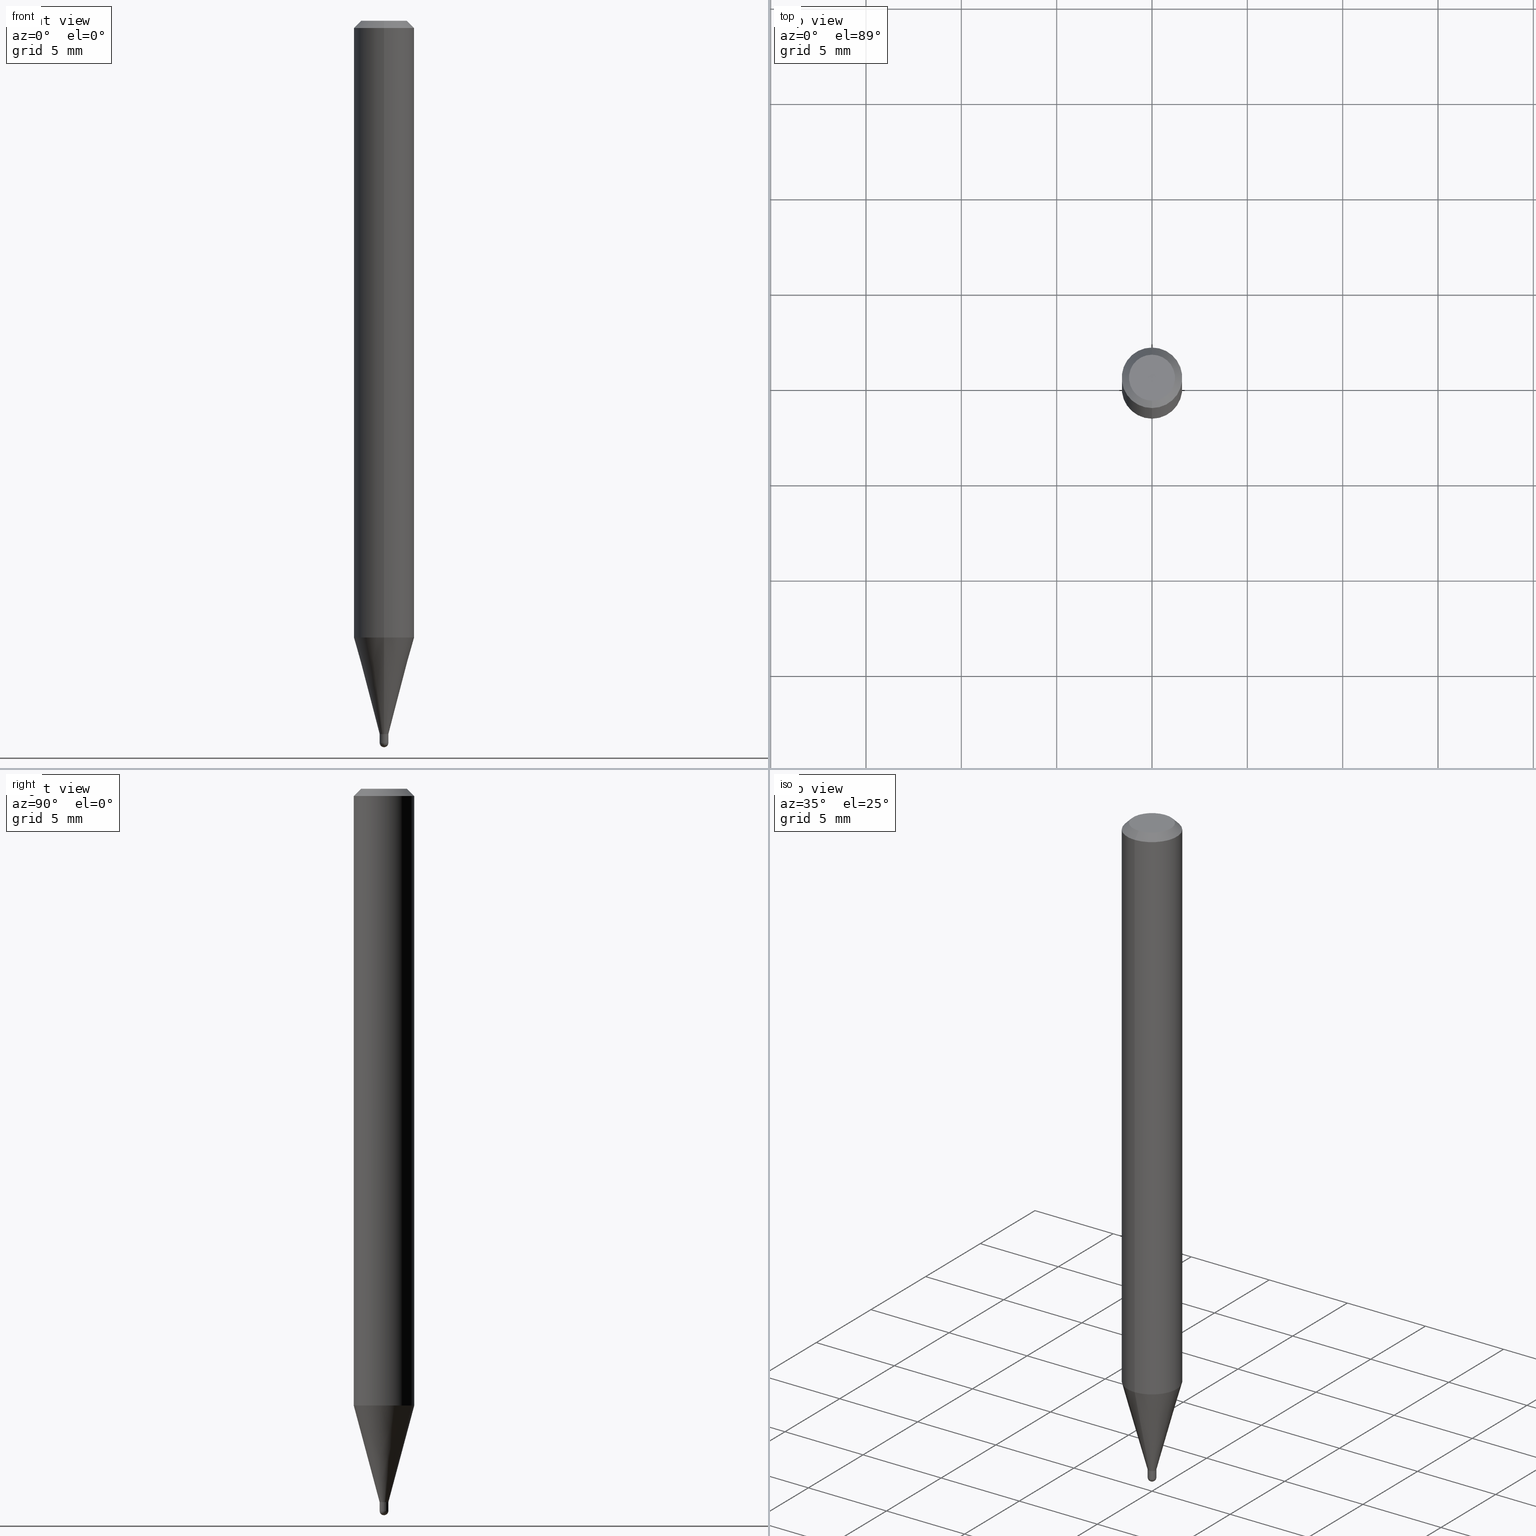
[diagram: canonical four-view strip — front | top / right | iso, engineering-drawing reading convention]
A machine part, canonical four-view strip (front | top / right | iso — engineering-drawing reading convention). The complete STEP part file that produces these views, byte-faithful:
ISO-10303-21;
HEADER;
FILE_DESCRIPTION (( 'STEP AP203' ),
    '1' );
FILE_NAME ('04330.STEP',
    '2024-03-08T18:40:05',
    ( '' ),
    ( '' ),
    'SwSTEP 2.0',
    'SolidWorks 2023',
    '' );
FILE_SCHEMA (( 'CONFIG_CONTROL_DESIGN' ));
ENDSEC;

DATA;
#1 = DATE_AND_TIME ( #467, #373 ) ;
#2 = DIRECTION ( 'NONE',  ( -2.445461654615416664E-29, 3.491491580298026496E-15, 1.000000000000000000 ) ) ;
#3 = ORIENTED_EDGE ( 'NONE', *, *, #433, .F. ) ;
#4 = VECTOR ( 'NONE', #85, 39.37007874015748143 ) ;
#5 = CARTESIAN_POINT ( 'NONE',  ( 3.600942286421201241E-29, -5.141221351988844661E-15, -1.472500000000000142 ) ) ;
#6 = AXIS2_PLACEMENT_3D ( 'NONE', #93, #407, #253 ) ;
#7 = ADVANCED_FACE ( 'NONE', ( #100 ), #325, .T. ) ;
#8 = DIRECTION ( 'NONE',  ( -6.982962677686265922E-15, -1.000000000000000000, 0.000000000000000000 ) ) ;
#9 = CARTESIAN_POINT ( 'NONE',  ( 3.668192481923141303E-31, -5.237237370447062670E-17, -0.01500000000000006710 ) ) ;
#10 = DIRECTION ( 'NONE',  ( -2.445468806185136597E-29, 3.491481338843145583E-15, 1.000000000000000000 ) ) ;
#11 = ORIENTED_EDGE ( 'NONE', *, *, #376, .F. ) ;
#12 = DIRECTION ( 'NONE',  ( 1.000000000000000000, -6.982962677686225690E-15, 0.000000000000000000 ) ) ;
#13 = AXIS2_PLACEMENT_3D ( 'NONE', #123, #79, #274 ) ;
#14 = PRODUCT_DEFINITION_FORMATION_WITH_SPECIFIED_SOURCE ( 'ANY', '', #83, .NOT_KNOWN. ) ;
#15 = DIRECTION ( 'NONE',  ( -2.445461654615416664E-29, 3.491491580298026496E-15, 1.000000000000000000 ) ) ;
#16 = CC_DESIGN_PERSON_AND_ORGANIZATION_ASSIGNMENT ( #68, #230, ( #83 ) ) ;
#17 = ADVANCED_FACE ( 'NONE', ( #132 ), #205, .T. ) ;
#18 = CIRCLE ( 'NONE', #309, 0.009000000000000047892 ) ;
#19 = CARTESIAN_POINT ( 'NONE',  ( 6.039613253964452424E-17, 0.008499999999994855421, -1.473000000000000309 ) ) ;
#20 = ORIENTED_EDGE ( 'NONE', *, *, #186, .T. ) ;
#21 = DIRECTION ( 'NONE',  ( -6.982962677686265922E-15, -1.000000000000000000, 3.483106191921935554E-15 ) ) ;
#22 = ORIENTED_EDGE ( 'NONE', *, *, #332, .F. ) ;
#23 = CARTESIAN_POINT ( 'NONE',  ( 3.668192481923141303E-31, -5.237237370447062670E-17, -0.01500000000000006710 ) ) ;
#24 = EDGE_CURVE ( 'NONE', #188, #249, #289, .T. ) ;
#25 = APPLICATION_CONTEXT ( 'configuration controlled 3d designs of mechanical parts and assemblies' ) ;
#26 = ORIENTED_EDGE ( 'NONE', *, *, #147, .T. ) ;
#27 = CIRCLE ( 'NONE', #425, 0.06250000000000000000 ) ;
#28 =( GEOMETRIC_REPRESENTATION_CONTEXT ( 3 ) GLOBAL_UNCERTAINTY_ASSIGNED_CONTEXT ( ( #197 ) ) GLOBAL_UNIT_ASSIGNED_CONTEXT ( ( #383, #29, #386 ) ) REPRESENTATION_CONTEXT ( 'NONE', 'WORKASPACE' ) );
#29 =( NAMED_UNIT ( * ) PLANE_ANGLE_UNIT ( ) SI_UNIT ( $, .RADIAN. ) );
#30 = ORIENTED_EDGE ( 'NONE', *, *, #285, .T. ) ;
#31 = ORIENTED_EDGE ( 'NONE', *, *, #474, .F. ) ;
#32 = EDGE_CURVE ( 'NONE', #419, #506, #204, .T. ) ;
#33 = CIRCLE ( 'NONE', #398, 0.06250000000000000000 ) ;
#34 = PERSON_AND_ORGANIZATION ( #313, #317 ) ;
#35 = CYLINDRICAL_SURFACE ( 'NONE', #415, 0.008999999999999999320 ) ;
#36 = CARTESIAN_POINT ( 'NONE',  ( 0.000000000000000000, 0.000000000000000000, 0.000000000000000000 ) ) ;
#37 = DIRECTION ( 'NONE',  ( -6.982962677686265133E-15, -1.000000000000000000, 3.491491580298026496E-15 ) ) ;
#38 = FACE_OUTER_BOUND ( 'NONE', #465, .T. ) ;
#39 = ORIENTED_EDGE ( 'NONE', *, *, #149, .F. ) ;
#40 = DIRECTION ( 'NONE',  ( -2.445468806185136597E-29, 3.491481338843145583E-15, 1.000000000000000000 ) ) ;
#41 = CC_DESIGN_DATE_AND_TIME_ASSIGNMENT ( #263, #426, ( #216 ) ) ;
#42 = CARTESIAN_POINT ( 'NONE',  ( 6.394884621844563230E-17, 0.008999999999994817701, -1.491000000000000103 ) ) ;
#43 = CARTESIAN_POINT ( 'NONE',  ( -0.008999999999999999320, -5.110426497947132608E-15, -1.473000000000000087 ) ) ;
#44 = DIRECTION ( 'NONE',  ( -2.445468806185136597E-29, 3.491481338843145583E-15, 1.000000000000000000 ) ) ;
#45 = VECTOR ( 'NONE', #235, 39.37007874015748143 ) ;
#46 = CONICAL_SURFACE ( 'NONE', #451, 0.06250000000000000000, 0.7853981633974483900 ) ;
#47 = CARTESIAN_POINT ( 'NONE',  ( 0.000000000000000000, 0.000000000000000000, 0.000000000000000000 ) ) ;
#48 = CARTESIAN_POINT ( 'NONE',  ( -6.284666409914009652E-17, -0.009000000000005229511, -1.491000000000000103 ) ) ;
#49 = DIRECTION ( 'NONE',  ( -6.982962677686265922E-15, -1.000000000000000000, 3.483106191921935554E-15 ) ) ;
#50 = ADVANCED_FACE ( 'NONE', ( #372 ), #351, .T. ) ;
#51 = VERTEX_POINT ( 'NONE', #177 ) ;
#52 = ADVANCED_FACE ( 'NONE', ( #488 ), #35, .T. ) ;
#53 = SPHERICAL_SURFACE ( 'NONE', #246, 0.009000000000000047892 ) ;
#54 = EDGE_LOOP ( 'NONE', ( #347, #26, #22, #268 ) ) ;
#55 = DIRECTION ( 'NONE',  ( -6.982962677686265133E-15, -1.000000000000000000, 0.000000000000000000 ) ) ;
#56 = CONICAL_SURFACE ( 'NONE', #295, 0.009000000000000197078, 0.2617993877991573459 ) ;
#57 = CC_DESIGN_APPROVAL ( #410, ( #262 ) ) ;
#58 = CARTESIAN_POINT ( 'NONE',  ( 6.394884621844643349E-17, 0.008999999999995053623, -1.473000000000000087 ) ) ;
#59 = VERTEX_POINT ( 'NONE', #277 ) ;
#60 = DIRECTION ( 'NONE',  ( 1.000000000000000000, -6.982962677686225690E-15, 0.000000000000000000 ) ) ;
#61 = DIRECTION ( 'NONE',  ( -6.982962677686265922E-15, -1.000000000000000000, 0.000000000000000000 ) ) ;
#62 = ORIENTED_EDGE ( 'NONE', *, *, #186, .F. ) ;
#63 = ORIENTED_EDGE ( 'NONE', *, *, #98, .T. ) ;
#64 = CIRCLE ( 'NONE', #89, 0.009000000000000197078 ) ;
#65 = CIRCLE ( 'NONE', #361, 0.06250000000000000000 ) ;
#66 = PERSON_AND_ORGANIZATION ( #313, #317 ) ;
#67 = VERTEX_POINT ( 'NONE', #199 ) ;
#68 = PERSON_AND_ORGANIZATION ( #313, #317 ) ;
#69 = EDGE_LOOP ( 'NONE', ( #463, #378, #134, #292 ) ) ;
#70 = ADVANCED_FACE ( 'NONE', ( #348 ), #56, .T. ) ;
#71 = EDGE_LOOP ( 'NONE', ( #444, #62 ) ) ;
#72 = VECTOR ( 'NONE', #283, 39.37007874015748143 ) ;
#73 = DATE_AND_TIME ( #269, #326 ) ;
#74 = CARTESIAN_POINT ( 'NONE',  ( 3.113892605098765118E-29, -4.445839415283910039E-15, -1.273335281795072271 ) ) ;
#75 = DIRECTION ( 'NONE',  ( -2.445461654615416384E-29, 3.491491580298026496E-15, 1.000000000000000000 ) ) ;
#76 = ORIENTED_EDGE ( 'NONE', *, *, #91, .F. ) ;
#77 = DIRECTION ( 'NONE',  ( -2.445468806185136597E-29, 3.491481338843145583E-15, 1.000000000000000000 ) ) ;
#78 = CIRCLE ( 'NONE', #342, 0.04749999999999999362 ) ;
#79 = DIRECTION ( 'NONE',  ( -2.445461654615416664E-29, 3.491491580298026496E-15, 1.000000000000000000 ) ) ;
#80 = APPROVAL_PERSON_ORGANIZATION ( #34, #359, #193 ) ;
#81 = EDGE_CURVE ( 'NONE', #303, #419, #94, .T. ) ;
#82 = DIRECTION ( 'NONE',  ( 6.982962677686265922E-15, 1.000000000000000000, -3.483106191921935554E-15 ) ) ;
#83 = PRODUCT ( '04330', '04330', '', ( #184 ) ) ;
#84 = VERTEX_POINT ( 'NONE', #420 ) ;
#85 = DIRECTION ( 'NONE',  ( 4.937700262164548042E-15, 0.7071067811865451302, -0.7071067811865499042 ) ) ;
#86 = CARTESIAN_POINT ( 'NONE',  ( 6.394884621841040473E-17, 0.009000000000000197078, -3.142342422268292822E-17 ) ) ;
#87 = FACE_OUTER_BOUND ( 'NONE', #127, .T. ) ;
#88 = AXIS2_PLACEMENT_3D ( 'NONE', #208, #408, #411 ) ;
#89 = AXIS2_PLACEMENT_3D ( 'NONE', #5, #403, #482 ) ;
#90 = CARTESIAN_POINT ( 'NONE',  ( 3.602165017248509387E-29, -5.142967097778992648E-15, -1.473000000000000087 ) ) ;
#91 = EDGE_CURVE ( 'NONE', #84, #249, #391, .T. ) ;
#92 = DIRECTION ( 'NONE',  ( 2.445461654615416664E-29, -3.491491580298026496E-15, -1.000000000000000000 ) ) ;
#93 = CARTESIAN_POINT ( 'NONE',  ( 3.316907271900976096E-16, 0.04749999999999999362, -1.985957238558009581E-16 ) ) ;
#94 = CIRCLE ( 'NONE', #196, 0.009000000000000197078 ) ;
#95 = EDGE_LOOP ( 'NONE', ( #422, #20, #315, #138 ) ) ;
#96 = DIRECTION ( 'NONE',  ( -2.445468806185136597E-29, 3.491481338843145583E-15, 1.000000000000000000 ) ) ;
#97 = CC_DESIGN_APPROVAL ( #430, ( #216 ) ) ;
#98 = EDGE_CURVE ( 'NONE', #103, #324, #266, .T. ) ;
#99 = CARTESIAN_POINT ( 'NONE',  ( 4.440892098500935790E-16, 0.06249999999999554523, -1.273335281795072493 ) ) ;
#100 = FACE_OUTER_BOUND ( 'NONE', #402, .T. ) ;
#101 = EDGE_CURVE ( 'NONE', #142, #324, #469, .T. ) ;
#102 = PERSON_AND_ORGANIZATION_ROLE ( 'design_supplier' ) ;
#103 = VERTEX_POINT ( 'NONE', #507 ) ;
#104 = CARTESIAN_POINT ( 'NONE',  ( 3.602175551510706507E-29, -5.142952012115953829E-15, -1.473000000000000087 ) ) ;
#105 = CALENDAR_DATE ( 2024, 8, 3 ) ;
#106 = EDGE_LOOP ( 'NONE', ( #328, #341, #428, #298 ) ) ;
#107 = DIRECTION ( 'NONE',  ( -2.445461654615416664E-29, 3.491491580298026496E-15, 1.000000000000000000 ) ) ;
#108 = VECTOR ( 'NONE', #296, 39.37007874015748143 ) ;
#109 = VERTEX_POINT ( 'NONE', #48 ) ;
#110 = APPLICATION_PROTOCOL_DEFINITION ( 'international standard', 'config_control_design', 1994, #505 ) ;
#111 = DIRECTION ( 'NONE',  ( -2.445461654615416664E-29, 3.491491580298026496E-15, 1.000000000000000000 ) ) ;
#112 = EDGE_LOOP ( 'NONE', ( #468, #294, #381, #157 ) ) ;
#113 = CARTESIAN_POINT ( 'NONE',  ( 3.645424340361776999E-29, -5.206900858334362902E-15, -1.491000000000000103 ) ) ;
#114 = AXIS2_PLACEMENT_3D ( 'NONE', #160, #15, #168 ) ;
#115 = CARTESIAN_POINT ( 'NONE',  ( 0.000000000000000000, 0.000000000000000000, 0.000000000000000000 ) ) ;
#116 = VERTEX_POINT ( 'NONE', #331 ) ;
#117 = COORDINATED_UNIVERSAL_TIME_OFFSET ( 5, 0, .BEHIND. ) ;
#118 = CARTESIAN_POINT ( 'NONE',  ( -4.364351673553912750E-16, -0.06250000000000005551, -0.01499999999999984852 ) ) ;
#119 = SHAPE_DEFINITION_REPRESENTATION ( #170, #211 ) ;
#120 = EDGE_CURVE ( 'NONE', #109, #116, #461, .T. ) ;
#121 = CARTESIAN_POINT ( 'NONE',  ( -6.284666409917776463E-17, -0.009000000000000197078, 3.142342422268292822E-17 ) ) ;
#122 = CLOSED_SHELL ( 'NONE', ( #173, #395, #260, #389, #52 ) ) ;
#123 = CARTESIAN_POINT ( 'NONE',  ( 3.602165017248509947E-29, -5.142967097778994226E-15, -1.473000000000000309 ) ) ;
#124 = CIRCLE ( 'NONE', #114, 0.008499999999999998876 ) ;
#125 = ORIENTED_EDGE ( 'NONE', *, *, #503, .F. ) ;
#126 = DIRECTION ( 'NONE',  ( 2.445461654615416664E-29, -3.491491580298026496E-15, -1.000000000000000000 ) ) ;
#127 = EDGE_LOOP ( 'NONE', ( #375, #129, #459, #261 ) ) ;
#128 = FACE_OUTER_BOUND ( 'NONE', #69, .T. ) ;
#129 = ORIENTED_EDGE ( 'NONE', *, *, #376, .T. ) ;
#130 = LINE ( 'NONE', #176, #297 ) ;
#131 = AXIS2_PLACEMENT_3D ( 'NONE', #401, #10, #278 ) ;
#132 = FACE_OUTER_BOUND ( 'NONE', #95, .T. ) ;
#133 = CIRCLE ( 'NONE', #228, 0.008999999999999999320 ) ;
#134 = ORIENTED_EDGE ( 'NONE', *, *, #345, .T. ) ;
#135 = CARTESIAN_POINT ( 'NONE',  ( 2.540190280342702096E-16, 0.008999999999995053623, -1.473000000000000087 ) ) ;
#136 = EDGE_LOOP ( 'NONE', ( #11, #150, #63, #125 ) ) ;
#137 = CARTESIAN_POINT ( 'NONE',  ( 3.645424340361776999E-29, -5.206900858334362902E-15, -1.491000000000000103 ) ) ;
#138 = ORIENTED_EDGE ( 'NONE', *, *, #291, .F. ) ;
#139 = DIRECTION ( 'NONE',  ( -2.445461654615416664E-29, 3.491491580298026496E-15, 1.000000000000000000 ) ) ;
#140 = CARTESIAN_POINT ( 'NONE',  ( 3.646193990022038953E-29, -5.205798676215130324E-15, -1.491000000000000103 ) ) ;
#141 = CIRCLE ( 'NONE', #182, 0.008999999999999999320 ) ;
#142 = VERTEX_POINT ( 'NONE', #362 ) ;
#143 = ORIENTED_EDGE ( 'NONE', *, *, #120, .T. ) ;
#144 = DATE_AND_TIME ( #393, #484 ) ;
#145 = ORIENTED_EDGE ( 'NONE', *, *, #218, .T. ) ;
#146 = DIRECTION ( 'NONE',  ( -4.851104656540964275E-15, -0.7071067811865500152, -0.7071067811865450192 ) ) ;
#147 = EDGE_CURVE ( 'NONE', #284, #109, #510, .T. ) ;
#148 = APPROVAL_STATUS ( 'not_yet_approved' ) ;
#149 = EDGE_CURVE ( 'NONE', #51, #506, #158, .T. ) ;
#150 = ORIENTED_EDGE ( 'NONE', *, *, #156, .T. ) ;
#151 = AXIS2_PLACEMENT_3D ( 'NONE', #280, #237, #165 ) ;
#152 = AXIS2_PLACEMENT_3D ( 'NONE', #137, #174, #495 ) ;
#153 = CC_DESIGN_PERSON_AND_ORGANIZATION_ASSIGNMENT ( #66, #501, ( #262 ) ) ;
#154 = COORDINATED_UNIVERSAL_TIME_OFFSET ( 5, 0, .BEHIND. ) ;
#155 = APPROVAL_DATE_TIME ( #1, #359 ) ;
#156 = EDGE_CURVE ( 'NONE', #496, #103, #367, .T. ) ;
#157 = ORIENTED_EDGE ( 'NONE', *, *, #285, .F. ) ;
#158 = CIRCLE ( 'NONE', #441, 0.009000000000000197078 ) ;
#159 = CIRCLE ( 'NONE', #287, 0.009000000000000197078 ) ;
#160 = CARTESIAN_POINT ( 'NONE',  ( 3.602165017248509947E-29, -5.142967097778994226E-15, -1.473000000000000309 ) ) ;
#161 = EDGE_CURVE ( 'NONE', #116, #84, #232, .T. ) ;
#162 = DIRECTION ( 'NONE',  ( -6.982962677686266711E-15, -1.000000000000000000, 3.491491580298026890E-15 ) ) ;
#163 = CARTESIAN_POINT ( 'NONE',  ( 3.667048734787312244E-29, -5.238875281443567833E-15, -1.500000000000000222 ) ) ;
#164 = AXIS2_PLACEMENT_3D ( 'NONE', #104, #96, #60 ) ;
#165 = DIRECTION ( 'NONE',  ( -6.982962677686265922E-15, -1.000000000000000000, 3.491491580298026496E-15 ) ) ;
#166 = DIRECTION ( 'NONE',  ( -6.982962677686265133E-15, -1.000000000000000000, 0.000000000000000000 ) ) ;
#167 = DESIGN_CONTEXT ( 'detailed design', #505, 'design' ) ;
#168 = DIRECTION ( 'NONE',  ( -6.982962677686265922E-15, -1.000000000000000000, 0.000000000000000000 ) ) ;
#169 = CARTESIAN_POINT ( 'NONE',  ( 3.602165017248509387E-29, -5.142967097778992648E-15, -1.473000000000000087 ) ) ;
#170 = PRODUCT_DEFINITION_SHAPE ( 'NONE', 'NONE',  #262 ) ;
#171 = ADVANCED_FACE ( 'NONE', ( #234 ), #476, .F. ) ;
#172 = CYLINDRICAL_SURFACE ( 'NONE', #333, 0.009000000000000197078 ) ;
#173 = ADVANCED_FACE ( 'NONE', ( #446 ), #329, .T. ) ;
#174 = DIRECTION ( 'NONE',  ( 1.000000000000000000, -6.982962677686265922E-15, 4.883557194083112340E-29 ) ) ;
#175 = AXIS2_PLACEMENT_3D ( 'NONE', #47, #210, #370 ) ;
#176 = CARTESIAN_POINT ( 'NONE',  ( -6.284666409914174820E-17, -0.009000000000005338799, -1.473000000000000087 ) ) ;
#177 = CARTESIAN_POINT ( 'NONE',  ( -6.284666409914197007E-17, -0.009000000000005366554, -1.472500000000000142 ) ) ;
#178 = ORIENTED_EDGE ( 'NONE', *, *, #24, .T. ) ;
#179 = LINE ( 'NONE', #58, #108 ) ;
#180 = ORIENTED_EDGE ( 'NONE', *, *, #466, .T. ) ;
#181 = DIRECTION ( 'NONE',  ( -2.445461654615416664E-29, 3.491491580298026496E-15, 1.000000000000000000 ) ) ;
#182 = AXIS2_PLACEMENT_3D ( 'NONE', #358, #44, #12 ) ;
#183 = CARTESIAN_POINT ( 'NONE',  ( 3.602165017248509947E-29, -5.142967097778994226E-15, -1.473000000000000309 ) ) ;
#184 = MECHANICAL_CONTEXT ( 'NONE', #25, 'mechanical' ) ;
#185 = EDGE_LOOP ( 'NONE', ( #281, #220, #143, #336, #338 ) ) ;
#186 = EDGE_CURVE ( 'NONE', #498, #67, #470, .T. ) ;
#187 = ADVANCED_FACE ( 'NONE', ( #436 ), #242, .T. ) ;
#188 = VERTEX_POINT ( 'NONE', #206 ) ;
#189 = APPROVAL_STATUS ( 'not_yet_approved' ) ;
#190 = AXIS2_PLACEMENT_3D ( 'NONE', #113, #318, #8 ) ;
#191 = AXIS2_PLACEMENT_3D ( 'NONE', #36, #231, #306 ) ;
#192 = AXIS2_PLACEMENT_3D ( 'NONE', #140, #250, #337 ) ;
#193 = APPROVAL_ROLE ( '' ) ;
#194 = ORIENTED_EDGE ( 'NONE', *, *, #101, .F. ) ;
#195 = LINE ( 'NONE', #365, #226 ) ;
#196 = AXIS2_PLACEMENT_3D ( 'NONE', #252, #221, #55 ) ;
#197 = UNCERTAINTY_MEASURE_WITH_UNIT (LENGTH_MEASURE( 1.000000000000000082E-05 ), #383, 'distance_accuracy_value', 'NONE');
#198 = DIRECTION ( 'NONE',  ( 1.000000000000000000, -6.982962677686225690E-15, 0.000000000000000000 ) ) ;
#199 = CARTESIAN_POINT ( 'NONE',  ( -5.935518276029722497E-17, -0.008500000000005140596, -1.473000000000000309 ) ) ;
#200 = DIMENSIONAL_EXPONENTS ( 1.000000000000000000, 0.000000000000000000, 0.000000000000000000, 0.000000000000000000, 0.000000000000000000, 0.000000000000000000, 0.000000000000000000 ) ;
#201 = EDGE_CURVE ( 'NONE', #257, #188, #141, .T. ) ;
#202 = DIRECTION ( 'NONE',  ( 2.438088387897960049E-29, -3.491481338843145188E-15, -1.000000000000000000 ) ) ;
#203 = DIRECTION ( 'NONE',  ( -1.000000000000000000, 6.982962677686265922E-15, -4.876176775795935793E-29 ) ) ;
#204 = LINE ( 'NONE', #86, #72 ) ;
#205 = CONICAL_SURFACE ( 'NONE', #88, 0.008499999999999998876, 0.7853981633974739252 ) ;
#206 = CARTESIAN_POINT ( 'NONE',  ( -0.008999999999999999320, -5.110426497947132608E-15, -1.491000000000000103 ) ) ;
#207 = EDGE_CURVE ( 'NONE', #142, #59, #435, .T. ) ;
#208 = CARTESIAN_POINT ( 'NONE',  ( 3.602165017248509947E-29, -5.142967097778994226E-15, -1.473000000000000309 ) ) ;
#209 = DIRECTION ( 'NONE',  ( -2.445468806185136597E-29, 3.491481338843145583E-15, 1.000000000000000000 ) ) ;
#210 = DIRECTION ( 'NONE',  ( -2.445461654615416664E-29, 3.491491580298026496E-15, 1.000000000000000000 ) ) ;
#211 = ADVANCED_BREP_SHAPE_REPRESENTATION ( '04330', ( #512, #339, #191 ), #28 ) ;
#212 = ADVANCED_FACE ( 'NONE', ( #490 ), #276, .F. ) ;
#213 = DIRECTION ( 'NONE',  ( -6.982962677686265922E-15, -1.000000000000000000, 0.000000000000000000 ) ) ;
#214 = DIRECTION ( 'NONE',  ( -2.445461654615416664E-29, 3.491491580298026496E-15, 1.000000000000000000 ) ) ;
#215 = DIRECTION ( 'NONE',  ( -2.445461654615416664E-29, 3.491491580298026496E-15, 1.000000000000000000 ) ) ;
#216 = SECURITY_CLASSIFICATION ( '', '', #259 ) ;
#217 = ORIENTED_EDGE ( 'NONE', *, *, #305, .T. ) ;
#218 = EDGE_CURVE ( 'NONE', #59, #142, #78, .T. ) ;
#219 = CARTESIAN_POINT ( 'NONE',  ( 0.000000000000000000, 0.000000000000000000, 0.000000000000000000 ) ) ;
#220 = ORIENTED_EDGE ( 'NONE', *, *, #332, .T. ) ;
#221 = DIRECTION ( 'NONE',  ( -2.445461654615416664E-29, 3.491491580298026496E-15, 1.000000000000000000 ) ) ;
#222 = CARTESIAN_POINT ( 'NONE',  ( 6.217248937904546654E-17, 0.008499999999994855421, -1.473000000000000309 ) ) ;
#223 = ORIENTED_EDGE ( 'NONE', *, *, #275, .F. ) ;
#224 = PERSON_AND_ORGANIZATION ( #313, #317 ) ;
#225 = ORIENTED_EDGE ( 'NONE', *, *, #207, .T. ) ;
#226 = VECTOR ( 'NONE', #368, 39.37007874015748143 ) ;
#227 = ORIENTED_EDGE ( 'NONE', *, *, #258, .F. ) ;
#228 = AXIS2_PLACEMENT_3D ( 'NONE', #481, #40, #198 ) ;
#229 = ORIENTED_EDGE ( 'NONE', *, *, #388, .F. ) ;
#230 = PERSON_AND_ORGANIZATION_ROLE ( 'design_owner' ) ;
#231 = DIRECTION ( 'NONE',  ( 0.000000000000000000, 0.000000000000000000, 1.000000000000000000 ) ) ;
#232 = LINE ( 'NONE', #272, #45 ) ;
#233 =( LENGTH_UNIT ( ) NAMED_UNIT ( * ) SI_UNIT ( $, .METRE. ) );
#234 = FACE_OUTER_BOUND ( 'NONE', #385, .T. ) ;
#235 = DIRECTION ( 'NONE',  ( -2.445468806185136877E-29, 3.491481338843145188E-15, 1.000000000000000000 ) ) ;
#236 = FACE_OUTER_BOUND ( 'NONE', #112, .T. ) ;
#237 = DIRECTION ( 'NONE',  ( -2.445461654615416664E-29, 3.491491580298026496E-15, 1.000000000000000000 ) ) ;
#238 = ADVANCED_FACE ( 'NONE', ( #236 ), #245, .T. ) ;
#239 = APPROVAL_PERSON_ORGANIZATION ( #224, #410, #464 ) ;
#240 = DIRECTION ( 'NONE',  ( -2.445461654615416664E-29, 3.491491580298026496E-15, 1.000000000000000000 ) ) ;
#241 = CC_DESIGN_PERSON_AND_ORGANIZATION_ASSIGNMENT ( #314, #271, ( #14 ) ) ;
#242 = CYLINDRICAL_SURFACE ( 'NONE', #151, 0.06250000000000000000 ) ;
#243 = ORIENTED_EDGE ( 'NONE', *, *, #494, .T. ) ;
#244 = DIRECTION ( 'NONE',  ( -6.982962677686265922E-15, -1.000000000000000000, 3.491491580298026496E-15 ) ) ;
#245 = CONICAL_SURFACE ( 'NONE', #316, 0.06250000000000000000, 0.7853981633974483900 ) ;
#246 = AXIS2_PLACEMENT_3D ( 'NONE', #286, #452, #61 ) ;
#247 = CYLINDRICAL_SURFACE ( 'NONE', #175, 0.06250000000000000000 ) ;
#248 = DIRECTION ( 'NONE',  ( -2.445461654615416664E-29, 3.491491580298026496E-15, 1.000000000000000000 ) ) ;
#249 = VERTEX_POINT ( 'NONE', #43 ) ;
#250 = DIRECTION ( 'NONE',  ( -2.445468806185136597E-29, 3.491481338843145583E-15, 1.000000000000000000 ) ) ;
#251 = ORIENTED_EDGE ( 'NONE', *, *, #291, .T. ) ;
#252 = CARTESIAN_POINT ( 'NONE',  ( 3.602165017248509387E-29, -5.142967097778992648E-15, -1.473000000000000087 ) ) ;
#253 = DIRECTION ( 'NONE',  ( 6.982962677686265922E-15, 1.000000000000000000, -3.491491580298026496E-15 ) ) ;
#254 = LOCAL_TIME ( 13, 40, 5.000000000000000000, #117 ) ;
#255 = EDGE_LOOP ( 'NONE', ( #479, #243, #227, #229 ) ) ;
#256 = LINE ( 'NONE', #19, #493 ) ;
#257 = VERTEX_POINT ( 'NONE', #42 ) ;
#258 = EDGE_CURVE ( 'NONE', #103, #496, #27, .T. ) ;
#259 = SECURITY_CLASSIFICATION_LEVEL ( 'unclassified' ) ;
#260 = ADVANCED_FACE ( 'NONE', ( #38 ), #397, .F. ) ;
#261 = ORIENTED_EDGE ( 'NONE', *, *, #98, .F. ) ;
#262 = PRODUCT_DEFINITION ( 'UNKNOWN', '', #14, #167 ) ;
#263 = DATE_AND_TIME ( #105, #353 ) ;
#264 = AXIS2_PLACEMENT_3D ( 'NONE', #356, #321, #438 ) ;
#265 = ORIENTED_EDGE ( 'NONE', *, *, #301, .T. ) ;
#266 = LINE ( 'NONE', #304, #492 ) ;
#267 = APPLICATION_PROTOCOL_DEFINITION ( 'international standard', 'config_control_design', 1994, #25 ) ;
#268 = ORIENTED_EDGE ( 'NONE', *, *, #201, .F. ) ;
#269 = CALENDAR_DATE ( 2024, 8, 3 ) ;
#270 = DIRECTION ( 'NONE',  ( -6.982962677686265922E-15, -1.000000000000000000, 4.370956789862821150E-15 ) ) ;
#271 = PERSON_AND_ORGANIZATION_ROLE ( 'creator' ) ;
#272 = CARTESIAN_POINT ( 'NONE',  ( 0.008999999999999999320, -6.284666409917639645E-17, 4.388559098216341408E-31 ) ) ;
#273 = AXIS2_PLACEMENT_3D ( 'NONE', #74, #2, #270 ) ;
#274 = DIRECTION ( 'NONE',  ( -6.982962677686265922E-15, -1.000000000000000000, 0.000000000000000000 ) ) ;
#275 = EDGE_CURVE ( 'NONE', #67, #51, #195, .T. ) ;
#276 = PLANE ( 'NONE',  #450 ) ;
#277 = CARTESIAN_POINT ( 'NONE',  ( 3.840629472727447874E-16, 0.04749999999999999362, -2.313455976474456528E-16 ) ) ;
#278 = DIRECTION ( 'NONE',  ( 1.000000000000000000, -6.982962677686266711E-15, 4.876176775795935232E-29 ) ) ;
#279 = AXIS2_PLACEMENT_3D ( 'NONE', #169, #335, #166 ) ;
#280 = CARTESIAN_POINT ( 'NONE',  ( 0.000000000000000000, 0.000000000000000000, 0.000000000000000000 ) ) ;
#281 = ORIENTED_EDGE ( 'NONE', *, *, #24, .F. ) ;
#282 = DIRECTION ( 'NONE',  ( -6.982962677686265922E-15, -1.000000000000000000, 4.370956789862821150E-15 ) ) ;
#283 = DIRECTION ( 'NONE',  ( -2.445461654615416664E-29, 3.491491580298026496E-15, 1.000000000000000000 ) ) ;
#284 = VERTEX_POINT ( 'NONE', #163 ) ;
#285 = EDGE_CURVE ( 'NONE', #59, #485, #366, .T. ) ;
#286 = CARTESIAN_POINT ( 'NONE',  ( 3.645424340361776999E-29, -5.206900858334362902E-15, -1.491000000000000103 ) ) ;
#287 = AXIS2_PLACEMENT_3D ( 'NONE', #90, #215, #343 ) ;
#288 = CARTESIAN_POINT ( 'NONE',  ( 3.668192481923141303E-31, -5.237237370447062670E-17, -0.01500000000000006710 ) ) ;
#289 = LINE ( 'NONE', #453, #352 ) ;
#290 = DIRECTION ( 'NONE',  ( 7.105427357601001859E-15, 1.000000000000000000, 0.000000000000000000 ) ) ;
#291 = EDGE_CURVE ( 'NONE', #506, #51, #64, .T. ) ;
#292 = ORIENTED_EDGE ( 'NONE', *, *, #149, .T. ) ;
#293 = FACE_OUTER_BOUND ( 'NONE', #471, .T. ) ;
#294 = ORIENTED_EDGE ( 'NONE', *, *, #101, .T. ) ;
#295 = AXIS2_PLACEMENT_3D ( 'NONE', #424, #139, #460 ) ;
#296 = DIRECTION ( 'NONE',  ( 1.839019923739648830E-15, 0.2588190451025317862, 0.9659258262890653146 ) ) ;
#297 = VECTOR ( 'NONE', #340, 39.37007874015748854 ) ;
#298 = ORIENTED_EDGE ( 'NONE', *, *, #156, .F. ) ;
#299 = PERSON_AND_ORGANIZATION ( #313, #317 ) ;
#300 = ORIENTED_EDGE ( 'NONE', *, *, #345, .F. ) ;
#301 = EDGE_CURVE ( 'NONE', #67, #498, #124, .T. ) ;
#302 = COORDINATED_UNIVERSAL_TIME_OFFSET ( 5, 0, .BEHIND. ) ;
#303 = VERTEX_POINT ( 'NONE', #319 ) ;
#304 = CARTESIAN_POINT ( 'NONE',  ( -4.364351673553916201E-16, -0.06250000000000000000, 2.182182237686266560E-16 ) ) ;
#305 = EDGE_CURVE ( 'NONE', #249, #84, #384, .T. ) ;
#306 = DIRECTION ( 'NONE',  ( 1.000000000000000000, 0.000000000000000000, 0.000000000000000000 ) ) ;
#307 = CLOSED_SHELL ( 'NONE', ( #171, #7, #238, #511, #70, #50, #187, #357, #414, #212, #17, #448 ) ) ;
#308 = EDGE_LOOP ( 'NONE', ( #344, #178, #76, #423, #456 ) ) ;
#309 = AXIS2_PLACEMENT_3D ( 'NONE', #454, #418, #290 ) ;
#310 = APPROVAL_STATUS ( 'not_yet_approved' ) ;
#311 = DIRECTION ( 'NONE',  ( -6.982962677686265133E-15, -1.000000000000000000, 0.000000000000000000 ) ) ;
#312 = PRODUCT_RELATED_PRODUCT_CATEGORY ( 'detail', '', ( #83 ) ) ;
#313 = PERSON ( 'UNSPECIFIED', 'UNSPECIFIED', 'UNSPECIFIED', ('UNSPECIFIED'), ('UNSPECIFIED'), ('UNSPECIFIED') ) ;
#314 = PERSON_AND_ORGANIZATION ( #313, #317 ) ;
#315 = ORIENTED_EDGE ( 'NONE', *, *, #275, .T. ) ;
#316 = AXIS2_PLACEMENT_3D ( 'NONE', #9, #126, #82 ) ;
#317 = ORGANIZATION ( 'UNSPECIFIED', 'UNSPECIFIED', '' ) ;
#318 = DIRECTION ( 'NONE',  ( -1.000000000000000000, 6.982962677686265922E-15, -4.883557194083112340E-29 ) ) ;
#319 = CARTESIAN_POINT ( 'NONE',  ( -6.284666409914174820E-17, -0.009000000000005338799, -1.473000000000000087 ) ) ;
#320 = ORIENTED_EDGE ( 'NONE', *, *, #218, .F. ) ;
#321 = DIRECTION ( 'NONE',  ( -2.445468806185136597E-29, 3.491481338843145583E-15, 1.000000000000000000 ) ) ;
#322 = DIRECTION ( 'NONE',  ( -2.445461654615416664E-29, 3.491491580298026496E-15, 1.000000000000000000 ) ) ;
#323 = CARTESIAN_POINT ( 'NONE',  ( 4.364351673553919652E-16, 0.06249999999999995143, -0.01500000000000028394 ) ) ;
#324 = VERTEX_POINT ( 'NONE', #118 ) ;
#325 = CONICAL_SURFACE ( 'NONE', #382, 0.008499999999999998876, 0.7853981633974739252 ) ;
#326 = LOCAL_TIME ( 13, 40, 5.000000000000000000, #154 ) ;
#327 = CARTESIAN_POINT ( 'NONE',  ( 1.601771211019229148E-45, -2.286918171987008033E-31, -6.549974758328935232E-17 ) ) ;
#328 = ORIENTED_EDGE ( 'NONE', *, *, #494, .F. ) ;
#329 = CYLINDRICAL_SURFACE ( 'NONE', #131, 0.008999999999999999320 ) ;
#330 = DIRECTION ( 'NONE',  ( -2.445461654615416664E-29, 3.491491580298026496E-15, 1.000000000000000000 ) ) ;
#331 = CARTESIAN_POINT ( 'NONE',  ( 0.008999999999999999320, -5.237222008264718177E-15, -1.491000000000000103 ) ) ;
#332 = EDGE_CURVE ( 'NONE', #188, #109, #133, .T. ) ;
#333 = AXIS2_PLACEMENT_3D ( 'NONE', #219, #330, #462 ) ;
#334 = CARTESIAN_POINT ( 'NONE',  ( 4.440892098500625669E-16, 0.06250000000000000000, -2.182182237686266560E-16 ) ) ;
#335 = DIRECTION ( 'NONE',  ( -2.445461654615416664E-29, 3.491491580298026496E-15, 1.000000000000000000 ) ) ;
#336 = ORIENTED_EDGE ( 'NONE', *, *, #161, .T. ) ;
#337 = DIRECTION ( 'NONE',  ( 1.000000000000000000, -6.982962677686225690E-15, 0.000000000000000000 ) ) ;
#338 = ORIENTED_EDGE ( 'NONE', *, *, #305, .F. ) ;
#339 = MANIFOLD_SOLID_BREP ( 'Body-Move/Copy2[2]', #307 ) ;
#340 = DIRECTION ( 'NONE',  ( -1.807323732225377865E-15, -0.2588190451025250138, 0.9659258262890670910 ) ) ;
#341 = ORIENTED_EDGE ( 'NONE', *, *, #433, .T. ) ;
#342 = AXIS2_PLACEMENT_3D ( 'NONE', #327, #240, #487 ) ;
#343 = DIRECTION ( 'NONE',  ( -6.982962677686265133E-15, -1.000000000000000000, 0.000000000000000000 ) ) ;
#344 = ORIENTED_EDGE ( 'NONE', *, *, #201, .T. ) ;
#345 = EDGE_CURVE ( 'NONE', #303, #51, #363, .T. ) ;
#346 = PERSON_AND_ORGANIZATION ( #313, #317 ) ;
#347 = ORIENTED_EDGE ( 'NONE', *, *, #466, .F. ) ;
#348 = FACE_OUTER_BOUND ( 'NONE', #255, .T. ) ;
#349 = COORDINATED_UNIVERSAL_TIME_OFFSET ( 5, 0, .BEHIND. ) ;
#350 = ORIENTED_EDGE ( 'NONE', *, *, #32, .T. ) ;
#351 = CONICAL_SURFACE ( 'NONE', #279, 0.009000000000000197078, 0.2617993877991573459 ) ;
#352 = VECTOR ( 'NONE', #413, 39.37007874015748143 ) ;
#353 = LOCAL_TIME ( 13, 40, 5.000000000000000000, #302 ) ;
#354 = COORDINATED_UNIVERSAL_TIME_OFFSET ( 5, 0, .BEHIND. ) ;
#355 = ORIENTED_EDGE ( 'NONE', *, *, #489, .T. ) ;
#356 = CARTESIAN_POINT ( 'NONE',  ( 3.646193990022038953E-29, -5.205798676215130324E-15, -1.491000000000000103 ) ) ;
#357 = ADVANCED_FACE ( 'NONE', ( #457 ), #46, .T. ) ;
#358 = CARTESIAN_POINT ( 'NONE',  ( 3.646193990022038953E-29, -5.205798676215130324E-15, -1.491000000000000103 ) ) ;
#359 = APPROVAL ( #189, 'UNSPECIFIED' ) ;
#360 = VECTOR ( 'NONE', #146, 39.37007874015748143 ) ;
#361 = AXIS2_PLACEMENT_3D ( 'NONE', #499, #248, #21 ) ;
#362 = CARTESIAN_POINT ( 'NONE',  ( -3.773273898774340269E-16, -0.04749999999999999362, 1.003461024808668988E-16 ) ) ;
#363 = LINE ( 'NONE', #121, #417 ) ;
#364 = DATE_AND_TIME ( #475, #254 ) ;
#365 = CARTESIAN_POINT ( 'NONE',  ( -5.935518276029722497E-17, -0.008500000000005140596, -1.473000000000000309 ) ) ;
#366 = LINE ( 'NONE', #323, #4 ) ;
#367 = CIRCLE ( 'NONE', #273, 0.06250000000000000000 ) ;
#368 = DIRECTION ( 'NONE',  ( -4.937700262164674260E-15, -0.7071067811865632269, 0.7071067811865319186 ) ) ;
#369 = DIRECTION ( 'NONE',  ( 1.000000000000000000, -6.982962677686266711E-15, 4.876176775795935232E-29 ) ) ;
#370 = DIRECTION ( 'NONE',  ( -6.982962677686265922E-15, -1.000000000000000000, 3.491491580298026496E-15 ) ) ;
#371 = FACE_OUTER_BOUND ( 'NONE', #473, .T. ) ;
#372 = FACE_OUTER_BOUND ( 'NONE', #106, .T. ) ;
#373 = LOCAL_TIME ( 13, 40, 5.000000000000000000, #354 ) ;
#374 = FACE_OUTER_BOUND ( 'NONE', #54, .T. ) ;
#375 = ORIENTED_EDGE ( 'NONE', *, *, #258, .T. ) ;
#376 = EDGE_CURVE ( 'NONE', #496, #485, #421, .T. ) ;
#377 = PLANE ( 'NONE',  #6 ) ;
#378 = ORIENTED_EDGE ( 'NONE', *, *, #81, .F. ) ;
#379 = CC_DESIGN_PERSON_AND_ORGANIZATION_ASSIGNMENT ( #346, #504, ( #216 ) ) ;
#380 = DIRECTION ( 'NONE',  ( 6.982962677686265922E-15, 1.000000000000000000, -3.483106191921935554E-15 ) ) ;
#381 = ORIENTED_EDGE ( 'NONE', *, *, #455, .T. ) ;
#382 = AXIS2_PLACEMENT_3D ( 'NONE', #183, #502, #213 ) ;
#383 =( CONVERSION_BASED_UNIT ( 'INCH', #434 ) LENGTH_UNIT ( ) NAMED_UNIT ( #200 ) );
#384 = CIRCLE ( 'NONE', #405, 0.008999999999999999320 ) ;
#385 = EDGE_LOOP ( 'NONE', ( #3, #350, #251, #300 ) ) ;
#386 =( NAMED_UNIT ( * ) SI_UNIT ( $, .STERADIAN. ) SOLID_ANGLE_UNIT ( ) );
#387 = ORIENTED_EDGE ( 'NONE', *, *, #120, .F. ) ;
#388 = EDGE_CURVE ( 'NONE', #303, #103, #130, .T. ) ;
#389 = ADVANCED_FACE ( 'NONE', ( #374 ), #53, .T. ) ;
#390 = APPROVAL_ROLE ( '' ) ;
#391 = CIRCLE ( 'NONE', #164, 0.008999999999999999320 ) ;
#392 = CC_DESIGN_SECURITY_CLASSIFICATION ( #216, ( #14 ) ) ;
#393 = CALENDAR_DATE ( 2024, 8, 3 ) ;
#394 = DIRECTION ( 'NONE',  ( -2.445461654615416664E-29, 3.491491580298026496E-15, 1.000000000000000000 ) ) ;
#395 = ADVANCED_FACE ( 'NONE', ( #371 ), #412, .T. ) ;
#396 = CARTESIAN_POINT ( 'NONE',  ( 3.113892605098765118E-29, -4.445839415283910039E-15, -1.273335281795072271 ) ) ;
#397 = PLANE ( 'NONE',  #404 ) ;
#398 = AXIS2_PLACEMENT_3D ( 'NONE', #23, #181, #49 ) ;
#399 = CARTESIAN_POINT ( 'NONE',  ( 3.602165017248509947E-29, -5.142967097778994226E-15, -1.473000000000000309 ) ) ;
#400 = CC_DESIGN_PERSON_AND_ORGANIZATION_ASSIGNMENT ( #299, #102, ( #14 ) ) ;
#401 = CARTESIAN_POINT ( 'NONE',  ( 0.000000000000000000, 0.000000000000000000, 0.000000000000000000 ) ) ;
#402 = EDGE_LOOP ( 'NONE', ( #265, #355, #39, #223 ) ) ;
#403 = DIRECTION ( 'NONE',  ( -2.445461654615416664E-29, 3.491491580298026496E-15, 1.000000000000000000 ) ) ;
#404 = AXIS2_PLACEMENT_3D ( 'NONE', #445, #202, #203 ) ;
#405 = AXIS2_PLACEMENT_3D ( 'NONE', #437, #77, #480 ) ;
#406 = CARTESIAN_POINT ( 'NONE',  ( 0.000000000000000000, 0.000000000000000000, 0.000000000000000000 ) ) ;
#407 = DIRECTION ( 'NONE',  ( 2.445461654615416384E-29, -3.491491580298026496E-15, -1.000000000000000000 ) ) ;
#408 = DIRECTION ( 'NONE',  ( -2.445461654615416664E-29, 3.491491580298026496E-15, 1.000000000000000000 ) ) ;
#409 = CARTESIAN_POINT ( 'NONE',  ( 4.440892098500938748E-16, 0.06249999999999995143, -0.01500000000000028394 ) ) ;
#410 = APPROVAL ( #310, 'UNSPECIFIED' ) ;
#411 = DIRECTION ( 'NONE',  ( -6.982962677686265922E-15, -1.000000000000000000, 0.000000000000000000 ) ) ;
#412 = SPHERICAL_SURFACE ( 'NONE', #152, 0.009000000000000047892 ) ;
#413 = DIRECTION ( 'NONE',  ( -2.445468806185136877E-29, 3.491481338843145188E-15, 1.000000000000000000 ) ) ;
#414 = ADVANCED_FACE ( 'NONE', ( #293 ), #377, .F. ) ;
#415 = AXIS2_PLACEMENT_3D ( 'NONE', #406, #209, #369 ) ;
#416 = APPROVAL_PERSON_ORGANIZATION ( #508, #430, #390 ) ;
#417 = VECTOR ( 'NONE', #497, 39.37007874015748143 ) ;
#418 = DIRECTION ( 'NONE',  ( 1.000000000000000000, -7.105427357601001070E-15, 4.926315508542082329E-29 ) ) ;
#419 = VERTEX_POINT ( 'NONE', #135 ) ;
#420 = CARTESIAN_POINT ( 'NONE',  ( 0.008999999999999999320, -5.205798676215129535E-15, -1.473000000000000087 ) ) ;
#421 = LINE ( 'NONE', #334, #478 ) ;
#422 = ORIENTED_EDGE ( 'NONE', *, *, #489, .F. ) ;
#423 = ORIENTED_EDGE ( 'NONE', *, *, #161, .F. ) ;
#424 = CARTESIAN_POINT ( 'NONE',  ( 3.602165017248509387E-29, -5.142967097778992648E-15, -1.473000000000000087 ) ) ;
#425 = AXIS2_PLACEMENT_3D ( 'NONE', #396, #322, #282 ) ;
#426 = DATE_TIME_ROLE ( 'classification_date' ) ;
#427 = CIRCLE ( 'NONE', #192, 0.008999999999999999320 ) ;
#428 = ORIENTED_EDGE ( 'NONE', *, *, #388, .T. ) ;
#429 = CARTESIAN_POINT ( 'NONE',  ( -4.287811248607203282E-16, -0.06250000000000005551, -0.01499999999999984852 ) ) ;
#430 = APPROVAL ( #148, 'UNSPECIFIED' ) ;
#431 = ORIENTED_EDGE ( 'NONE', *, *, #91, .T. ) ;
#432 = DATE_TIME_ROLE ( 'creation_date' ) ;
#433 = EDGE_CURVE ( 'NONE', #419, #303, #159, .T. ) ;
#434 = LENGTH_MEASURE_WITH_UNIT ( LENGTH_MEASURE( 0.02539999999999999897 ), #233 );
#435 = CIRCLE ( 'NONE', #477, 0.04749999999999999362 ) ;
#436 = FACE_OUTER_BOUND ( 'NONE', #136, .T. ) ;
#437 = CARTESIAN_POINT ( 'NONE',  ( 3.602175551510706507E-29, -5.142952012115953829E-15, -1.473000000000000087 ) ) ;
#438 = DIRECTION ( 'NONE',  ( 1.000000000000000000, -6.982962677686225690E-15, 0.000000000000000000 ) ) ;
#439 = CARTESIAN_POINT ( 'NONE',  ( 3.600942286421201241E-29, -5.141221351988844661E-15, -1.472500000000000142 ) ) ;
#440 = CARTESIAN_POINT ( 'NONE',  ( 1.601771211019229148E-45, -2.286918171987008033E-31, -6.549974758328935232E-17 ) ) ;
#441 = AXIS2_PLACEMENT_3D ( 'NONE', #439, #111, #311 ) ;
#442 = CC_DESIGN_APPROVAL ( #359, ( #14 ) ) ;
#443 = DIRECTION ( 'NONE',  ( -2.445461654615416664E-29, 3.491491580298026496E-15, 1.000000000000000000 ) ) ;
#444 = ORIENTED_EDGE ( 'NONE', *, *, #301, .F. ) ;
#445 = CARTESIAN_POINT ( 'NONE',  ( 6.284666409921241288E-17, 0.008999999999994855865, -1.473000000000000087 ) ) ;
#446 = FACE_OUTER_BOUND ( 'NONE', #308, .T. ) ;
#447 = ORIENTED_EDGE ( 'NONE', *, *, #503, .T. ) ;
#448 = ADVANCED_FACE ( 'NONE', ( #128 ), #172, .F. ) ;
#449 = CARTESIAN_POINT ( 'NONE',  ( 6.394884621844619929E-17, 0.008999999999995025868, -1.472500000000000142 ) ) ;
#450 = AXIS2_PLACEMENT_3D ( 'NONE', #399, #75, #244 ) ;
#451 = AXIS2_PLACEMENT_3D ( 'NONE', #288, #92, #380 ) ;
#452 = DIRECTION ( 'NONE',  ( 1.000000000000000000, -6.982962677686265922E-15, 4.883557194083112340E-29 ) ) ;
#453 = CARTESIAN_POINT ( 'NONE',  ( -0.008999999999999999320, 6.394884621840901190E-17, -4.427041581229414594E-31 ) ) ;
#454 = CARTESIAN_POINT ( 'NONE',  ( 3.645424340361776999E-29, -5.206900858334362902E-15, -1.491000000000000103 ) ) ;
#455 = EDGE_CURVE ( 'NONE', #324, #485, #65, .T. ) ;
#456 = ORIENTED_EDGE ( 'NONE', *, *, #474, .T. ) ;
#457 = FACE_OUTER_BOUND ( 'NONE', #509, .T. ) ;
#458 = CC_DESIGN_DATE_AND_TIME_ASSIGNMENT ( #73, #432, ( #262 ) ) ;
#459 = ORIENTED_EDGE ( 'NONE', *, *, #455, .F. ) ;
#460 = DIRECTION ( 'NONE',  ( -6.982962677686265133E-15, -1.000000000000000000, 0.000000000000000000 ) ) ;
#461 = CIRCLE ( 'NONE', #264, 0.008999999999999999320 ) ;
#462 = DIRECTION ( 'NONE',  ( -6.982962677686265133E-15, -1.000000000000000000, 3.491491580298026496E-15 ) ) ;
#463 = ORIENTED_EDGE ( 'NONE', *, *, #32, .F. ) ;
#464 = APPROVAL_ROLE ( '' ) ;
#465 = EDGE_LOOP ( 'NONE', ( #431, #217 ) ) ;
#466 = EDGE_CURVE ( 'NONE', #284, #257, #18, .T. ) ;
#467 = CALENDAR_DATE ( 2024, 8, 3 ) ;
#468 = ORIENTED_EDGE ( 'NONE', *, *, #207, .F. ) ;
#469 = LINE ( 'NONE', #429, #360 ) ;
#470 = CIRCLE ( 'NONE', #13, 0.008499999999999998876 ) ;
#471 = EDGE_LOOP ( 'NONE', ( #145, #225 ) ) ;
#472 = APPROVAL_DATE_TIME ( #144, #410 ) ;
#473 = EDGE_LOOP ( 'NONE', ( #500, #180, #31, #387 ) ) ;
#474 = EDGE_CURVE ( 'NONE', #116, #257, #427, .T. ) ;
#475 = CALENDAR_DATE ( 2024, 8, 3 ) ;
#476 = CYLINDRICAL_SURFACE ( 'NONE', #483, 0.009000000000000197078 ) ;
#477 = AXIS2_PLACEMENT_3D ( 'NONE', #440, #443, #162 ) ;
#478 = VECTOR ( 'NONE', #214, 39.37007874015748143 ) ;
#479 = ORIENTED_EDGE ( 'NONE', *, *, #81, .T. ) ;
#480 = DIRECTION ( 'NONE',  ( 1.000000000000000000, -6.982962677686225690E-15, 0.000000000000000000 ) ) ;
#481 = CARTESIAN_POINT ( 'NONE',  ( 3.646193990022038953E-29, -5.205798676215130324E-15, -1.491000000000000103 ) ) ;
#482 = DIRECTION ( 'NONE',  ( -6.982962677686265133E-15, -1.000000000000000000, 0.000000000000000000 ) ) ;
#483 = AXIS2_PLACEMENT_3D ( 'NONE', #115, #394, #37 ) ;
#484 = LOCAL_TIME ( 13, 40, 5.000000000000000000, #349 ) ;
#485 = VERTEX_POINT ( 'NONE', #409 ) ;
#486 = APPROVAL_DATE_TIME ( #364, #430 ) ;
#487 = DIRECTION ( 'NONE',  ( -6.982962677686266711E-15, -1.000000000000000000, 3.491491580298026890E-15 ) ) ;
#488 = FACE_OUTER_BOUND ( 'NONE', #185, .T. ) ;
#489 = EDGE_CURVE ( 'NONE', #498, #506, #256, .T. ) ;
#490 = FACE_OUTER_BOUND ( 'NONE', #71, .T. ) ;
#491 = DIRECTION ( 'NONE',  ( 5.024295867788190974E-15, 0.7071067811865681119, 0.7071067811865270336 ) ) ;
#492 = VECTOR ( 'NONE', #107, 39.37007874015748143 ) ;
#493 = VECTOR ( 'NONE', #491, 39.37007874015748143 ) ;
#494 = EDGE_CURVE ( 'NONE', #419, #496, #179, .T. ) ;
#495 = DIRECTION ( 'NONE',  ( -6.982962677686265922E-15, -1.000000000000000000, 0.000000000000000000 ) ) ;
#496 = VERTEX_POINT ( 'NONE', #99 ) ;
#497 = DIRECTION ( 'NONE',  ( -2.445461654615416664E-29, 3.491491580298026496E-15, 1.000000000000000000 ) ) ;
#498 = VERTEX_POINT ( 'NONE', #222 ) ;
#499 = CARTESIAN_POINT ( 'NONE',  ( 3.668192481923141303E-31, -5.237237370447062670E-17, -0.01500000000000006710 ) ) ;
#500 = ORIENTED_EDGE ( 'NONE', *, *, #147, .F. ) ;
#501 = PERSON_AND_ORGANIZATION_ROLE ( 'creator' ) ;
#502 = DIRECTION ( 'NONE',  ( -2.445461654615416664E-29, 3.491491580298026496E-15, 1.000000000000000000 ) ) ;
#503 = EDGE_CURVE ( 'NONE', #485, #324, #33, .T. ) ;
#504 = PERSON_AND_ORGANIZATION_ROLE ( 'classification_officer' ) ;
#505 = APPLICATION_CONTEXT ( 'configuration controlled 3d designs of mechanical parts and assemblies' ) ;
#506 = VERTEX_POINT ( 'NONE', #449 ) ;
#507 = CARTESIAN_POINT ( 'NONE',  ( -4.364351673553605587E-16, -0.06250000000000444089, -1.273335281795072049 ) ) ;
#508 = PERSON_AND_ORGANIZATION ( #313, #317 ) ;
#509 = EDGE_LOOP ( 'NONE', ( #194, #320, #30, #447 ) ) ;
#510 = CIRCLE ( 'NONE', #190, 0.009000000000000047892 ) ;
#511 = ADVANCED_FACE ( 'NONE', ( #87 ), #247, .T. ) ;
#512 = MANIFOLD_SOLID_BREP ( 'Body-Move/Copy2[1]', #122 ) ;
ENDSEC;
END-ISO-10303-21;
